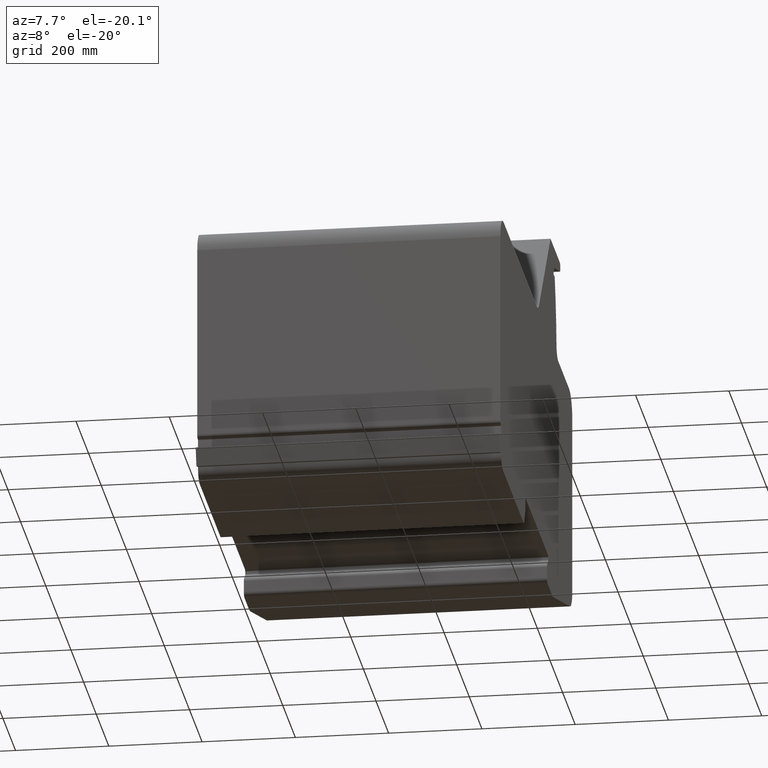
[diagram: clean part render]
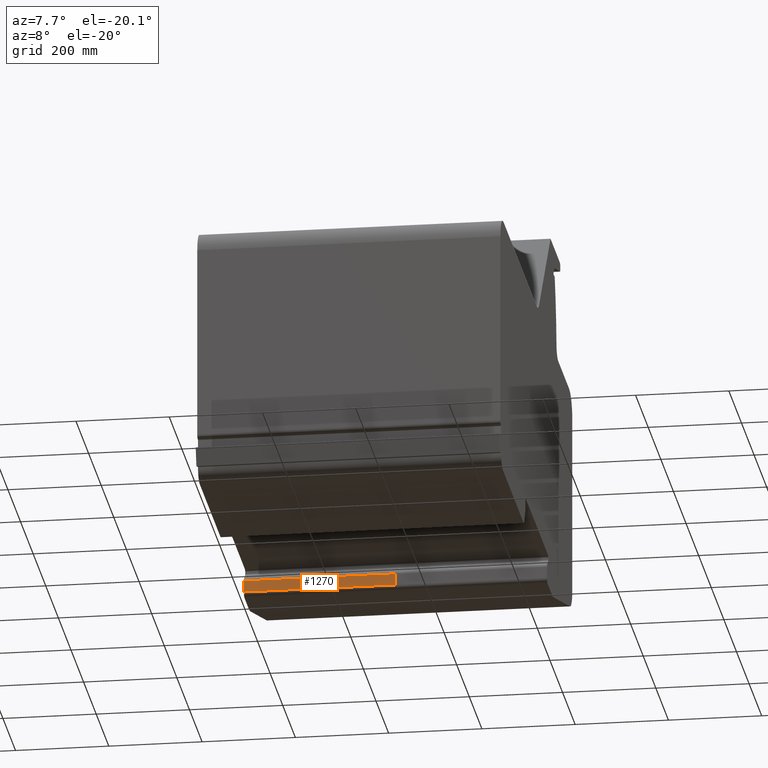
[diagram: same view with one face highlighted and labeled with its STEP entity id]
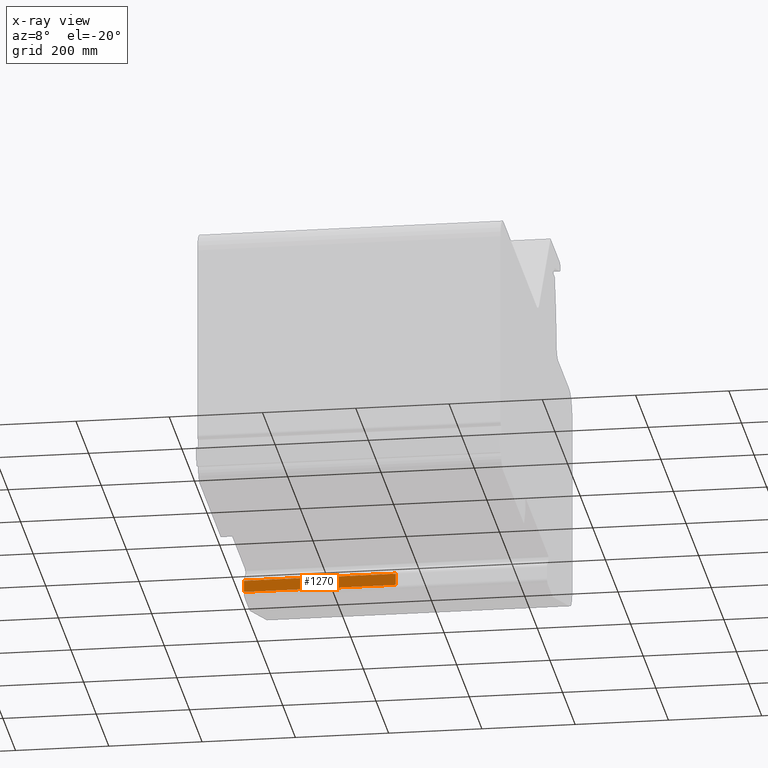
[diagram: x-ray of the same camera — body ghosted, the highlighted face saturated]
A machine part, auxiliary view. The second image highlights one B-rep face of the part: STEP entity #1270.
The next image is the same camera in x-ray: the body ghosted, the highlighted face saturated — about 0% of this face is hidden behind the body in this view.
In plain terms, the highlighted planar face has unit normal (0, -1, 0).
Its self-contained STEP definition (entity closure, byte-faithful):
#1212=CARTESIAN_POINT('',(325.00000000000011,-16.000000000000227,-57.499999999999943));
#1213=VERTEX_POINT('',#1212);
#1221=CARTESIAN_POINT('',(0.0,-16.000000000000227,-57.499999999999943));
#1222=VERTEX_POINT('',#1221);
#1223=CARTESIAN_POINT('',(0.0,-16.000000000000227,-57.499999999999943));
#1224=DIRECTION('',(1.0,0.0,0.0));
#1225=VECTOR('',#1224,325.00000000000011);
#1226=LINE('',#1223,#1225);
#1227=EDGE_CURVE('',#1222,#1213,#1226,.T.);
#1240=CARTESIAN_POINT('',(0.0,-16.000000000000227,-57.499999999999943));
#1241=DIRECTION('',(0.0,-1.0,0.0));
#1242=DIRECTION('',(0.0,0.0,-1.0));
#1243=AXIS2_PLACEMENT_3D('',#1240,#1241,#1242);
#1244=PLANE('',#1243);
#1245=CARTESIAN_POINT('',(325.00000000000011,-16.000000000000227,-32.452741697599947));
#1246=VERTEX_POINT('',#1245);
#1247=CARTESIAN_POINT('',(325.00000000000011,-16.000000000000227,-57.499999999999943));
#1248=DIRECTION('',(0.0,0.0,1.0));
#1249=VECTOR('',#1248,25.047258302399996);
#1250=LINE('',#1247,#1249);
#1251=EDGE_CURVE('',#1213,#1246,#1250,.T.);
#1252=ORIENTED_EDGE('',*,*,#1251,.T.);
#1253=CARTESIAN_POINT('',(0.0,-16.000000000000227,-32.452741697599947));
#1254=VERTEX_POINT('',#1253);
#1255=CARTESIAN_POINT('',(0.0,-16.000000000000227,-32.452741697599947));
#1256=DIRECTION('',(1.0,0.0,0.0));
#1257=VECTOR('',#1256,325.00000000000011);
#1258=LINE('',#1255,#1257);
#1259=EDGE_CURVE('',#1254,#1246,#1258,.T.);
#1260=ORIENTED_EDGE('',*,*,#1259,.F.);
#1261=CARTESIAN_POINT('',(0.0,-16.000000000000227,-57.499999999999943));
#1262=DIRECTION('',(0.0,0.0,1.0));
#1263=VECTOR('',#1262,25.047258302399996);
#1264=LINE('',#1261,#1263);
#1265=EDGE_CURVE('',#1222,#1254,#1264,.T.);
#1266=ORIENTED_EDGE('',*,*,#1265,.F.);
#1267=ORIENTED_EDGE('',*,*,#1227,.T.);
#1268=EDGE_LOOP('',(#1252,#1260,#1266,#1267));
#1269=FACE_OUTER_BOUND('',#1268,.T.);
#1270=ADVANCED_FACE('',(#1269),#1244,.T.);